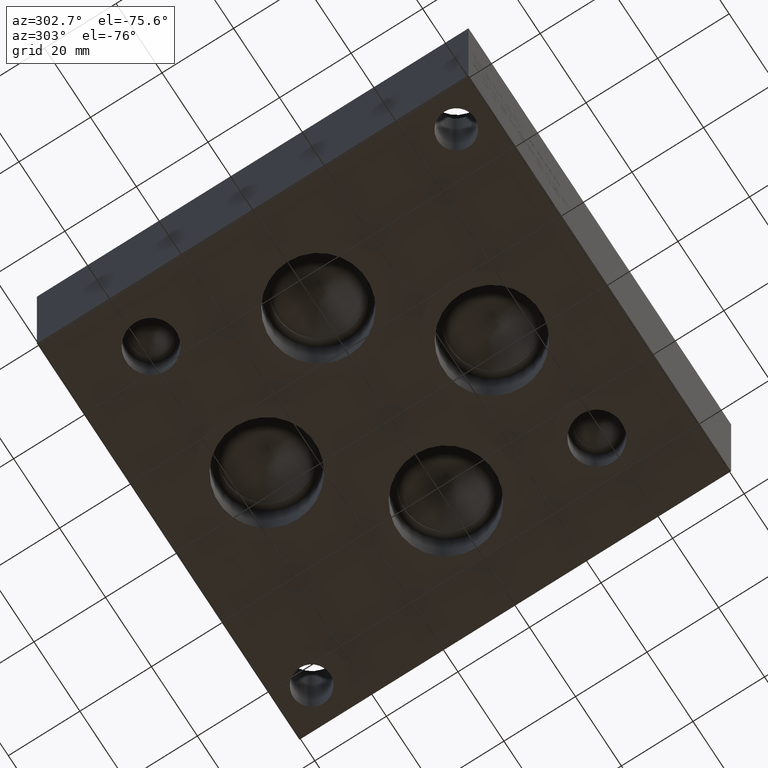
[diagram: clean part render]
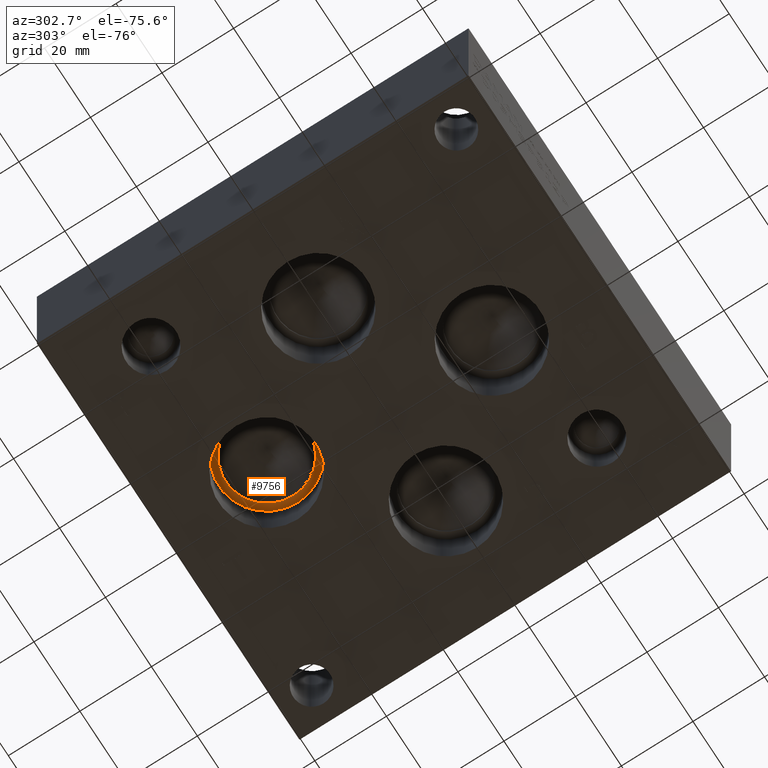
[diagram: same view with one face highlighted and labeled with its STEP entity id]
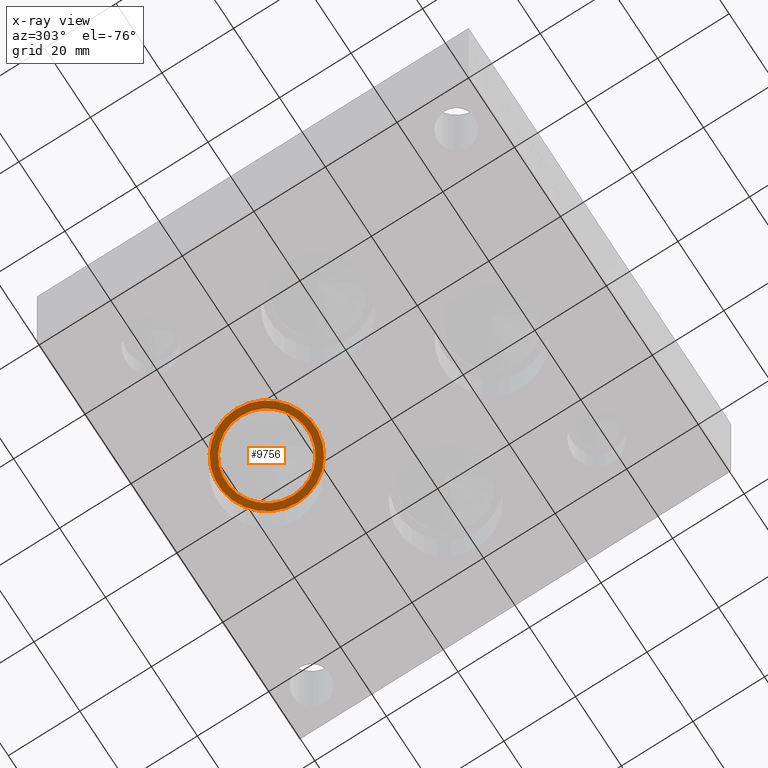
[diagram: x-ray of the same camera — body ghosted, the highlighted face saturated]
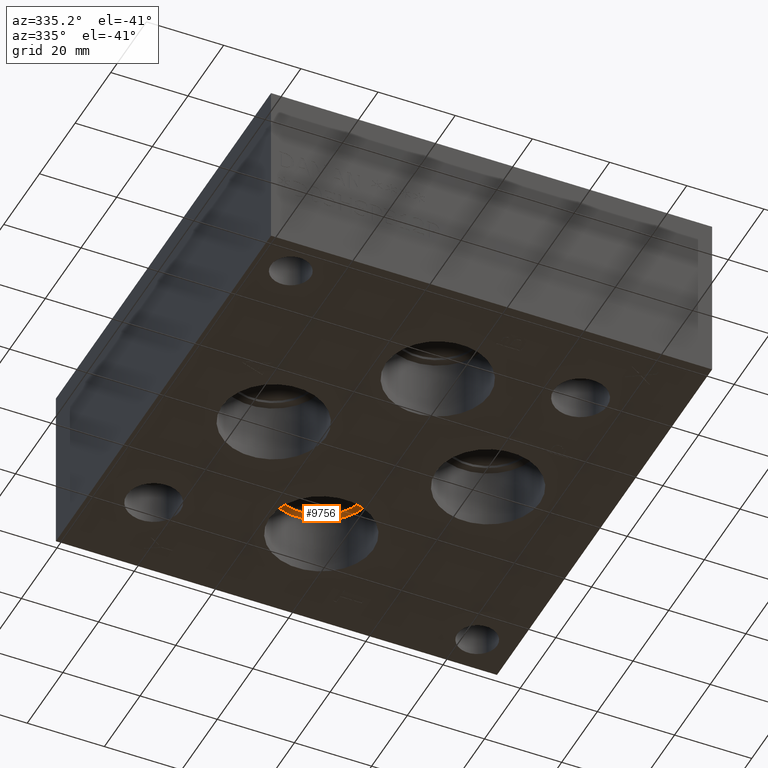
[diagram: same view with one face highlighted and labeled with its STEP entity id]
A machine part, auxiliary view. The second image highlights one B-rep face of the part: STEP entity #9756.
The next image is the same camera in x-ray: the body ghosted, the highlighted face saturated — about 0% of this face is hidden behind the body in this view.
A second angle (auxiliary view) of the same face is appended — the face is thin or edge-on in the first view.
In plain terms, the highlighted planar face has unit normal (0, 0, -1).
Its self-contained STEP definition (entity closure, byte-faithful):
#101=CIRCLE('',#10185,13.462);
#102=CIRCLE('',#10186,13.462);
#103=CIRCLE('',#10187,11.5062);
#218=FACE_BOUND('',#1598,.T.);
#1051=FACE_OUTER_BOUND('',#1597,.T.);
#1597=EDGE_LOOP('',(#8342,#8343));
#1598=EDGE_LOOP('',(#8344));
#4472=VERTEX_POINT('',#16339);
#4473=VERTEX_POINT('',#16340);
#4474=VERTEX_POINT('',#16343);
#5786=EDGE_CURVE('',#4472,#4473,#101,.T.);
#5787=EDGE_CURVE('',#4473,#4472,#102,.T.);
#5788=EDGE_CURVE('',#4474,#4474,#103,.T.);
#8342=ORIENTED_EDGE('',*,*,#5786,.T.);
#8343=ORIENTED_EDGE('',*,*,#5787,.T.);
#8344=ORIENTED_EDGE('',*,*,#5788,.F.);
#8874=PLANE('',#10184);
#9756=ADVANCED_FACE('',(#1051,#218),#8874,.T.);
#10184=AXIS2_PLACEMENT_3D('',#16338,#11990,#11991);
#10185=AXIS2_PLACEMENT_3D('',#16341,#11992,#11993);
#10186=AXIS2_PLACEMENT_3D('',#16342,#11994,#11995);
#10187=AXIS2_PLACEMENT_3D('',#16344,#11996,#11997);
#11990=DIRECTION('center_axis',(0.,0.,-1.));
#11991=DIRECTION('ref_axis',(1.,0.,0.));
#11992=DIRECTION('center_axis',(0.,0.,-1.));
#11993=DIRECTION('ref_axis',(1.,0.,0.));
#11994=DIRECTION('center_axis',(0.,0.,-1.));
#11995=DIRECTION('ref_axis',(1.,0.,0.));
#11996=DIRECTION('center_axis',(0.,0.,-1.));
#11997=DIRECTION('ref_axis',(1.,0.,0.));
#16338=CARTESIAN_POINT('Origin',(55.5752,92.075,15.8496));
#16339=CARTESIAN_POINT('',(69.0372,92.075,15.8496));
#16340=CARTESIAN_POINT('',(42.1132,92.075,15.8496));
#16341=CARTESIAN_POINT('Origin',(55.5752,92.075,15.8496));
#16342=CARTESIAN_POINT('Origin',(55.5752,92.075,15.8496));
#16343=CARTESIAN_POINT('',(44.069,92.075,15.8496));
#16344=CARTESIAN_POINT('Origin',(55.5752,92.075,15.8496));